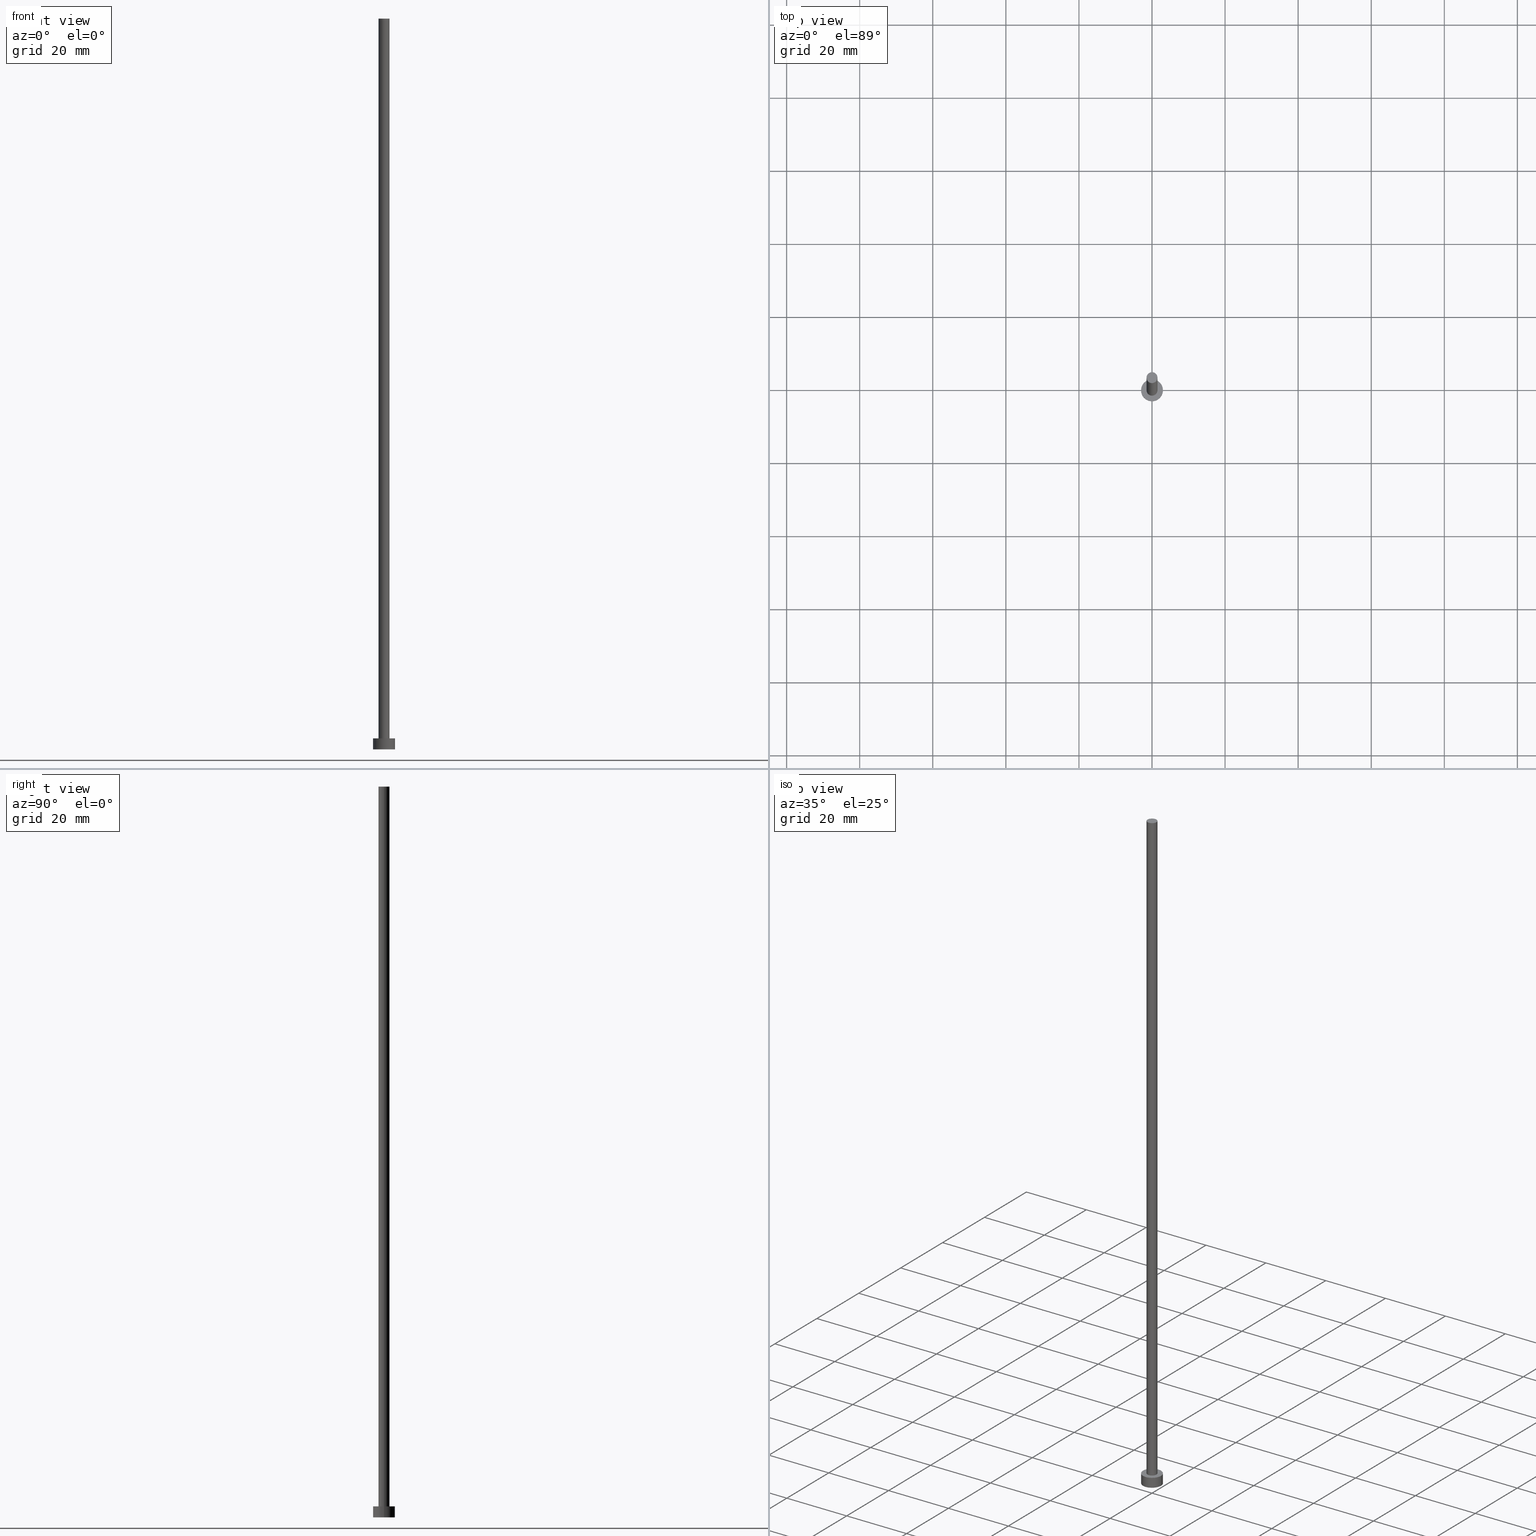
[diagram: canonical four-view strip — front | top / right | iso, engineering-drawing reading convention]
A machine part, canonical four-view strip (front | top / right | iso — engineering-drawing reading convention). The complete STEP part file that produces these views, byte-faithful:
ISO-10303-21;
HEADER;
FILE_DESCRIPTION (( 'STEP AP203' ),
    '1' );
FILE_NAME ('ea76.STEP',
    '2023-02-13T14:26:50',
    ( '' ),
    ( '' ),
    'SwSTEP 2.0',
    'SolidWorks 2019',
    '' );
FILE_SCHEMA (( 'CONFIG_CONTROL_DESIGN' ));
ENDSEC;

DATA;
#1 = AXIS2_PLACEMENT_3D ( 'NONE', #151, #56, #133 ) ;
#2 = DIRECTION ( 'NONE',  ( 0.000000000000000000, 0.000000000000000000, 1.000000000000000000 ) ) ;
#3 = APPROVAL_ROLE ( '' ) ;
#4 = PERSON_AND_ORGANIZATION ( #26, #108 ) ;
#5 = CARTESIAN_POINT ( 'NONE',  ( 0.000000000000000000, 0.000000000000000000, 3.000000000000000000 ) ) ;
#6 = FACE_OUTER_BOUND ( 'NONE', #117, .T. ) ;
#7 = CIRCLE ( 'NONE', #243, 1.500000000000000222 ) ;
#8 = ORIENTED_EDGE ( 'NONE', *, *, #55, .T. ) ;
#9 = ADVANCED_FACE ( 'NONE', ( #32 ), #182, .T. ) ;
#10 = COORDINATED_UNIVERSAL_TIME_OFFSET ( 1, 0, .AHEAD. ) ;
#11 = CALENDAR_DATE ( 2023, 13, 2 ) ;
#12 = APPROVAL_PERSON_ORGANIZATION ( #122, #149, #3 ) ;
#13 = DATE_AND_TIME ( #11, #142 ) ;
#14 = CIRCLE ( 'NONE', #183, 3.000000000000000444 ) ;
#15 = DIRECTION ( 'NONE',  ( 1.000000000000000000, 0.000000000000000000, -0.000000000000000000 ) ) ;
#16 = ORIENTED_EDGE ( 'NONE', *, *, #31, .F. ) ;
#17 = DIRECTION ( 'NONE',  ( -0.000000000000000000, -0.000000000000000000, -1.000000000000000000 ) ) ;
#18 = VERTEX_POINT ( 'NONE', #81 ) ;
#19 = DIRECTION ( 'NONE',  ( 1.000000000000000000, 0.000000000000000000, 0.000000000000000000 ) ) ;
#20 = ORIENTED_EDGE ( 'NONE', *, *, #132, .T. ) ;
#21 = EDGE_CURVE ( 'NONE', #190, #114, #74, .T. ) ;
#22 = EDGE_LOOP ( 'NONE', ( #146, #244 ) ) ;
#23 = DIRECTION ( 'NONE',  ( 0.000000000000000000, 0.000000000000000000, 1.000000000000000000 ) ) ;
#24 = VECTOR ( 'NONE', #204, 1000.000000000000000 ) ;
#25 = APPROVAL_STATUS ( 'not_yet_approved' ) ;
#26 = PERSON ( 'NEUR�EN�', 'NEUR�EN�', 'NEUR�EN�', ('NEUR�EN�'), ('NEUR�EN�'), ('NEUR�EN�') ) ;
#27 = ORIENTED_EDGE ( 'NONE', *, *, #196, .T. ) ;
#28 = CARTESIAN_POINT ( 'NONE',  ( -1.500000000000000222, 0.000000000000000000, 3.000000000000000000 ) ) ;
#29 = VECTOR ( 'NONE', #254, 1000.000000000000000 ) ;
#30 = DIRECTION ( 'NONE',  ( 0.000000000000000000, 0.000000000000000000, 1.000000000000000000 ) ) ;
#31 = EDGE_CURVE ( 'NONE', #114, #190, #14, .T. ) ;
#32 = FACE_OUTER_BOUND ( 'NONE', #252, .T. ) ;
#33 = APPROVAL ( #141, 'NEUR�EN�' ) ;
#34 = PERSON_AND_ORGANIZATION_ROLE ( 'classification_officer' ) ;
#35 = DATE_AND_TIME ( #87, #110 ) ;
#36 = CC_DESIGN_DATE_AND_TIME_ASSIGNMENT ( #13, #227, ( #253 ) ) ;
#37 = DIRECTION ( 'NONE',  ( -1.000000000000000000, 0.000000000000000000, 0.000000000000000000 ) ) ;
#38 = DIRECTION ( 'NONE',  ( 0.000000000000000000, 0.000000000000000000, 1.000000000000000000 ) ) ;
#39 = CARTESIAN_POINT ( 'NONE',  ( -1.500000000000000222, 0.000000000000000000, 200.0000000000000000 ) ) ;
#40 = CC_DESIGN_PERSON_AND_ORGANIZATION_ASSIGNMENT ( #67, #34, ( #253 ) ) ;
#41 = CLOSED_SHELL ( 'NONE', ( #52, #9, #237, #71, #47, #189, #185 ) ) ;
#42 = CARTESIAN_POINT ( 'NONE',  ( 1.500000000000000222, 1.836970198721030181E-16, 200.0000000000000000 ) ) ;
#43 = ORIENTED_EDGE ( 'NONE', *, *, #209, .T. ) ;
#44 =( GEOMETRIC_REPRESENTATION_CONTEXT ( 3 ) GLOBAL_UNCERTAINTY_ASSIGNED_CONTEXT ( ( #228 ) ) GLOBAL_UNIT_ASSIGNED_CONTEXT ( ( #162, #159, #158 ) ) REPRESENTATION_CONTEXT ( 'NONE', 'WORKASPACE' ) );
#45 = DIRECTION ( 'NONE',  ( 0.000000000000000000, 0.000000000000000000, 1.000000000000000000 ) ) ;
#46 = CARTESIAN_POINT ( 'NONE',  ( 0.000000000000000000, 0.000000000000000000, 3.000000000000000000 ) ) ;
#47 = ADVANCED_FACE ( 'NONE', ( #186 ), #89, .F. ) ;
#48 = ORIENTED_EDGE ( 'NONE', *, *, #118, .T. ) ;
#49 = DATE_AND_TIME ( #218, #113 ) ;
#50 = CARTESIAN_POINT ( 'NONE',  ( 3.000000000000000444, 3.673940397442060361E-16, 0.000000000000000000 ) ) ;
#51 = CARTESIAN_POINT ( 'NONE',  ( 0.000000000000000000, 0.000000000000000000, 3.000000000000000000 ) ) ;
#52 = ADVANCED_FACE ( 'NONE', ( #116 ), #211, .T. ) ;
#53 = APPROVAL_STATUS ( 'not_yet_approved' ) ;
#54 = CC_DESIGN_APPROVAL ( #33, ( #165 ) ) ;
#55 = EDGE_CURVE ( 'NONE', #18, #213, #172, .T. ) ;
#56 = DIRECTION ( 'NONE',  ( -0.000000000000000000, -0.000000000000000000, -1.000000000000000000 ) ) ;
#57 = CARTESIAN_POINT ( 'NONE',  ( -3.000000000000000444, 0.000000000000000000, 3.000000000000000000 ) ) ;
#58 = AXIS2_PLACEMENT_3D ( 'NONE', #176, #30, #124 ) ;
#59 = PLANE ( 'NONE',  #229 ) ;
#60 = EDGE_LOOP ( 'NONE', ( #104, #95 ) ) ;
#61 = CARTESIAN_POINT ( 'NONE',  ( 1.500000000000000222, 1.836970198721030181E-16, 200.0000000000000000 ) ) ;
#62 = DATE_TIME_ROLE ( 'creation_date' ) ;
#63 = EDGE_LOOP ( 'NONE', ( #66, #193 ) ) ;
#64 = CALENDAR_DATE ( 2023, 13, 2 ) ;
#65 = PERSON_AND_ORGANIZATION_ROLE ( 'design_owner' ) ;
#66 = ORIENTED_EDGE ( 'NONE', *, *, #147, .T. ) ;
#67 = PERSON_AND_ORGANIZATION ( #26, #108 ) ;
#68 = EDGE_CURVE ( 'NONE', #155, #200, #212, .T. ) ;
#69 = CYLINDRICAL_SURFACE ( 'NONE', #1, 1.500000000000000222 ) ;
#70 = ORIENTED_EDGE ( 'NONE', *, *, #138, .T. ) ;
#71 = ADVANCED_FACE ( 'NONE', ( #96, #73 ), #59, .T. ) ;
#72 = AXIS2_PLACEMENT_3D ( 'NONE', #216, #23, #197 ) ;
#73 = FACE_OUTER_BOUND ( 'NONE', #22, .T. ) ;
#74 = CIRCLE ( 'NONE', #139, 3.000000000000000444 ) ;
#75 = DIRECTION ( 'NONE',  ( 0.000000000000000000, 0.000000000000000000, 1.000000000000000000 ) ) ;
#76 = CARTESIAN_POINT ( 'NONE',  ( -3.000000000000000444, 0.000000000000000000, 3.000000000000000000 ) ) ;
#77 = DIRECTION ( 'NONE',  ( 1.000000000000000000, 0.000000000000000000, 0.000000000000000000 ) ) ;
#78 = COORDINATED_UNIVERSAL_TIME_OFFSET ( 1, 0, .AHEAD. ) ;
#79 = DIRECTION ( 'NONE',  ( -1.000000000000000000, 0.000000000000000000, 0.000000000000000000 ) ) ;
#80 = CC_DESIGN_PERSON_AND_ORGANIZATION_ASSIGNMENT ( #98, #178, ( #165 ) ) ;
#81 = CARTESIAN_POINT ( 'NONE',  ( -3.000000000000000444, 0.000000000000000000, 0.000000000000000000 ) ) ;
#82 = APPROVAL_PERSON_ORGANIZATION ( #148, #102, #225 ) ;
#83 = AXIS2_PLACEMENT_3D ( 'NONE', #136, #17, #37 ) ;
#84 = LOCAL_TIME ( 15, 26, 50.00000000000000000, #128 ) ;
#85 = PERSON_AND_ORGANIZATION_ROLE ( 'design_supplier' ) ;
#86 = DESIGN_CONTEXT ( 'detailed design', #111, 'design' ) ;
#87 = CALENDAR_DATE ( 2023, 13, 2 ) ;
#88 = AXIS2_PLACEMENT_3D ( 'NONE', #194, #157, #234 ) ;
#89 = PLANE ( 'NONE',  #164 ) ;
#90 = EDGE_CURVE ( 'NONE', #153, #155, #112, .T. ) ;
#91 = CARTESIAN_POINT ( 'NONE',  ( 0.000000000000000000, 0.000000000000000000, 200.0000000000000000 ) ) ;
#92 = ORIENTED_EDGE ( 'NONE', *, *, #68, .T. ) ;
#93 = CARTESIAN_POINT ( 'NONE',  ( 0.000000000000000000, 0.000000000000000000, 0.000000000000000000 ) ) ;
#94 = EDGE_LOOP ( 'NONE', ( #169, #241, #92, #43 ) ) ;
#95 = ORIENTED_EDGE ( 'NONE', *, *, #132, .F. ) ;
#96 = FACE_BOUND ( 'NONE', #60, .T. ) ;
#97 = VECTOR ( 'NONE', #255, 1000.000000000000000 ) ;
#98 = PERSON_AND_ORGANIZATION ( #26, #108 ) ;
#99 = DIRECTION ( 'NONE',  ( 1.000000000000000000, 0.000000000000000000, 0.000000000000000000 ) ) ;
#100 = PRODUCT ( 'ea76', 'ea76', '', ( #180 ) ) ;
#101 = CARTESIAN_POINT ( 'NONE',  ( 3.000000000000000444, 3.673940397442060361E-16, 3.000000000000000000 ) ) ;
#102 = APPROVAL ( #53, 'NEUR�EN�' ) ;
#103 = PERSON_AND_ORGANIZATION ( #26, #108 ) ;
#104 = ORIENTED_EDGE ( 'NONE', *, *, #209, .F. ) ;
#105 = CARTESIAN_POINT ( 'NONE',  ( 1.500000000000000222, 1.836970198721030181E-16, 3.000000000000000000 ) ) ;
#106 = AXIS2_PLACEMENT_3D ( 'NONE', #5, #121, #224 ) ;
#107 = ORIENTED_EDGE ( 'NONE', *, *, #68, .F. ) ;
#108 = ORGANIZATION ( 'NEUR�EN�', 'NEUR�EN�', '' ) ;
#109 = PERSON_AND_ORGANIZATION ( #26, #108 ) ;
#110 = LOCAL_TIME ( 15, 26, 50.00000000000000000, #188 ) ;
#111 = APPLICATION_CONTEXT ( 'configuration controlled 3d designs of mechanical parts and assemblies' ) ;
#112 = CIRCLE ( 'NONE', #166, 1.500000000000000222 ) ;
#113 = LOCAL_TIME ( 15, 26, 50.00000000000000000, #238 ) ;
#114 = VERTEX_POINT ( 'NONE', #191 ) ;
#115 = DIRECTION ( 'NONE',  ( 1.000000000000000000, 0.000000000000000000, 0.000000000000000000 ) ) ;
#116 = FACE_OUTER_BOUND ( 'NONE', #137, .T. ) ;
#117 = EDGE_LOOP ( 'NONE', ( #251, #175, #70, #8 ) ) ;
#118 = EDGE_CURVE ( 'NONE', #153, #217, #135, .T. ) ;
#119 = DIRECTION ( 'NONE',  ( 1.000000000000000000, 0.000000000000000000, -0.000000000000000000 ) ) ;
#120 = APPLICATION_PROTOCOL_DEFINITION ( 'international standard', 'config_control_design', 1994, #111 ) ;
#121 = DIRECTION ( 'NONE',  ( -0.000000000000000000, -0.000000000000000000, -1.000000000000000000 ) ) ;
#122 = PERSON_AND_ORGANIZATION ( #26, #108 ) ;
#123 = LOCAL_TIME ( 15, 26, 50.00000000000000000, #78 ) ;
#124 = DIRECTION ( 'NONE',  ( 1.000000000000000000, 0.000000000000000000, 0.000000000000000000 ) ) ;
#125 = ORIENTED_EDGE ( 'NONE', *, *, #55, .F. ) ;
#126 = MANIFOLD_SOLID_BREP ( 'P�idat vysunut�m3', #41 ) ;
#127 = DATE_AND_TIME ( #64, #84 ) ;
#128 = COORDINATED_UNIVERSAL_TIME_OFFSET ( 1, 0, .AHEAD. ) ;
#129 = CC_DESIGN_PERSON_AND_ORGANIZATION_ASSIGNMENT ( #4, #65, ( #100 ) ) ;
#130 = CIRCLE ( 'NONE', #58, 1.500000000000000222 ) ;
#131 = PERSON_AND_ORGANIZATION_ROLE ( 'creator' ) ;
#132 = EDGE_CURVE ( 'NONE', #217, #200, #203, .T. ) ;
#133 = DIRECTION ( 'NONE',  ( -1.000000000000000000, 0.000000000000000000, 0.000000000000000000 ) ) ;
#134 = DIRECTION ( 'NONE',  ( 1.000000000000000000, 0.000000000000000000, 0.000000000000000000 ) ) ;
#135 = LINE ( 'NONE', #42, #97 ) ;
#136 = CARTESIAN_POINT ( 'NONE',  ( 0.000000000000000000, 0.000000000000000000, 200.0000000000000000 ) ) ;
#137 = EDGE_LOOP ( 'NONE', ( #156, #48, #20, #107 ) ) ;
#138 = EDGE_CURVE ( 'NONE', #190, #18, #249, .T. ) ;
#139 = AXIS2_PLACEMENT_3D ( 'NONE', #202, #160, #99 ) ;
#140 = PLANE ( 'NONE',  #154 ) ;
#141 = APPROVAL_STATUS ( 'not_yet_approved' ) ;
#142 = LOCAL_TIME ( 15, 26, 50.00000000000000000, #10 ) ;
#143 = EDGE_LOOP ( 'NONE', ( #125, #210 ) ) ;
#144 = CC_DESIGN_SECURITY_CLASSIFICATION ( #253, ( #248 ) ) ;
#145 = DIRECTION ( 'NONE',  ( -0.000000000000000000, -0.000000000000000000, -1.000000000000000000 ) ) ;
#146 = ORIENTED_EDGE ( 'NONE', *, *, #21, .T. ) ;
#147 = EDGE_CURVE ( 'NONE', #155, #153, #7, .T. ) ;
#148 = PERSON_AND_ORGANIZATION ( #26, #108 ) ;
#149 = APPROVAL ( #25, 'NEUR�EN�' ) ;
#150 = SECURITY_CLASSIFICATION_LEVEL ( 'unclassified' ) ;
#151 = CARTESIAN_POINT ( 'NONE',  ( 0.000000000000000000, 0.000000000000000000, 200.0000000000000000 ) ) ;
#152 = DIRECTION ( 'NONE',  ( 0.000000000000000000, 0.000000000000000000, 1.000000000000000000 ) ) ;
#153 = VERTEX_POINT ( 'NONE', #61 ) ;
#154 = AXIS2_PLACEMENT_3D ( 'NONE', #214, #45, #119 ) ;
#155 = VERTEX_POINT ( 'NONE', #39 ) ;
#156 = ORIENTED_EDGE ( 'NONE', *, *, #90, .F. ) ;
#157 = DIRECTION ( 'NONE',  ( 0.000000000000000000, 0.000000000000000000, 1.000000000000000000 ) ) ;
#158 =( NAMED_UNIT ( * ) SI_UNIT ( $, .STERADIAN. ) SOLID_ANGLE_UNIT ( ) );
#159 =( NAMED_UNIT ( * ) PLANE_ANGLE_UNIT ( ) SI_UNIT ( $, .RADIAN. ) );
#160 = DIRECTION ( 'NONE',  ( 0.000000000000000000, 0.000000000000000000, 1.000000000000000000 ) ) ;
#161 = APPROVAL_PERSON_ORGANIZATION ( #103, #33, #219 ) ;
#162 =( LENGTH_UNIT ( ) NAMED_UNIT ( * ) SI_UNIT ( .MILLI., .METRE. ) );
#163 = APPROVAL_DATE_TIME ( #35, #102 ) ;
#164 = AXIS2_PLACEMENT_3D ( 'NONE', #174, #168, #15 ) ;
#165 = PRODUCT_DEFINITION ( 'NEZN�M�', '', #248, #86 ) ;
#166 = AXIS2_PLACEMENT_3D ( 'NONE', #250, #230, #134 ) ;
#167 = AXIS2_PLACEMENT_3D ( 'NONE', #93, #192, #19 ) ;
#168 = DIRECTION ( 'NONE',  ( 0.000000000000000000, 0.000000000000000000, 1.000000000000000000 ) ) ;
#169 = ORIENTED_EDGE ( 'NONE', *, *, #118, .F. ) ;
#170 = FACE_OUTER_BOUND ( 'NONE', #63, .T. ) ;
#171 = ORIENTED_EDGE ( 'NONE', *, *, #221, .T. ) ;
#172 = CIRCLE ( 'NONE', #167, 3.000000000000000444 ) ;
#173 = CARTESIAN_POINT ( 'NONE',  ( -1.500000000000000222, 0.000000000000000000, 200.0000000000000000 ) ) ;
#174 = CARTESIAN_POINT ( 'NONE',  ( 0.000000000000000000, 0.000000000000000000, 0.000000000000000000 ) ) ;
#175 = ORIENTED_EDGE ( 'NONE', *, *, #21, .F. ) ;
#176 = CARTESIAN_POINT ( 'NONE',  ( 0.000000000000000000, 0.000000000000000000, 3.000000000000000000 ) ) ;
#177 = CC_DESIGN_PERSON_AND_ORGANIZATION_ASSIGNMENT ( #187, #85, ( #248 ) ) ;
#178 = PERSON_AND_ORGANIZATION_ROLE ( 'creator' ) ;
#179 = AXIS2_PLACEMENT_3D ( 'NONE', #46, #145, #79 ) ;
#180 = MECHANICAL_CONTEXT ( 'NONE', #233, 'mechanical' ) ;
#181 = APPLICATION_PROTOCOL_DEFINITION ( 'international standard', 'config_control_design', 1994, #233 ) ;
#182 = CYLINDRICAL_SURFACE ( 'NONE', #106, 3.000000000000000444 ) ;
#183 = AXIS2_PLACEMENT_3D ( 'NONE', #51, #2, #77 ) ;
#184 = CARTESIAN_POINT ( 'NONE',  ( 0.000000000000000000, 0.000000000000000000, 0.000000000000000000 ) ) ;
#185 = ADVANCED_FACE ( 'NONE', ( #170 ), #140, .T. ) ;
#186 = FACE_OUTER_BOUND ( 'NONE', #143, .T. ) ;
#187 = PERSON_AND_ORGANIZATION ( #26, #108 ) ;
#188 = COORDINATED_UNIVERSAL_TIME_OFFSET ( 1, 0, .AHEAD. ) ;
#189 = ADVANCED_FACE ( 'NONE', ( #195 ), #69, .T. ) ;
#190 = VERTEX_POINT ( 'NONE', #76 ) ;
#191 = CARTESIAN_POINT ( 'NONE',  ( 3.000000000000000444, 3.673940397442060361E-16, 3.000000000000000000 ) ) ;
#192 = DIRECTION ( 'NONE',  ( 0.000000000000000000, 0.000000000000000000, 1.000000000000000000 ) ) ;
#193 = ORIENTED_EDGE ( 'NONE', *, *, #90, .T. ) ;
#194 = CARTESIAN_POINT ( 'NONE',  ( 0.000000000000000000, 0.000000000000000000, 3.000000000000000000 ) ) ;
#195 = FACE_OUTER_BOUND ( 'NONE', #94, .T. ) ;
#196 = EDGE_CURVE ( 'NONE', #114, #213, #201, .T. ) ;
#197 = DIRECTION ( 'NONE',  ( 1.000000000000000000, 0.000000000000000000, 0.000000000000000000 ) ) ;
#198 = DIRECTION ( 'NONE',  ( 1.000000000000000000, 0.000000000000000000, 0.000000000000000000 ) ) ;
#199 = AXIS2_PLACEMENT_3D ( 'NONE', #184, #75, #198 ) ;
#200 = VERTEX_POINT ( 'NONE', #28 ) ;
#201 = LINE ( 'NONE', #101, #24 ) ;
#202 = CARTESIAN_POINT ( 'NONE',  ( 0.000000000000000000, 0.000000000000000000, 3.000000000000000000 ) ) ;
#203 = CIRCLE ( 'NONE', #88, 1.500000000000000222 ) ;
#204 = DIRECTION ( 'NONE',  ( -0.000000000000000000, -0.000000000000000000, -1.000000000000000000 ) ) ;
#205 = DATE_AND_TIME ( #239, #123 ) ;
#206 = CARTESIAN_POINT ( 'NONE',  ( 0.000000000000000000, 0.000000000000000000, 3.000000000000000000 ) ) ;
#207 = ORIENTED_EDGE ( 'NONE', *, *, #138, .F. ) ;
#208 = DIRECTION ( 'NONE',  ( -0.000000000000000000, -0.000000000000000000, -1.000000000000000000 ) ) ;
#209 = EDGE_CURVE ( 'NONE', #200, #217, #130, .T. ) ;
#210 = ORIENTED_EDGE ( 'NONE', *, *, #221, .F. ) ;
#211 = CYLINDRICAL_SURFACE ( 'NONE', #83, 1.500000000000000222 ) ;
#212 = LINE ( 'NONE', #173, #29 ) ;
#213 = VERTEX_POINT ( 'NONE', #50 ) ;
#214 = CARTESIAN_POINT ( 'NONE',  ( 0.000000000000000000, 0.000000000000000000, 200.0000000000000000 ) ) ;
#215 = CC_DESIGN_PERSON_AND_ORGANIZATION_ASSIGNMENT ( #109, #131, ( #248 ) ) ;
#216 = CARTESIAN_POINT ( 'NONE',  ( 0.000000000000000000, 0.000000000000000000, 0.000000000000000000 ) ) ;
#217 = VERTEX_POINT ( 'NONE', #105 ) ;
#218 = CALENDAR_DATE ( 2023, 13, 2 ) ;
#219 = APPROVAL_ROLE ( '' ) ;
#220 = PRODUCT_DEFINITION_SHAPE ( 'NONE', 'NONE',  #165 ) ;
#221 = EDGE_CURVE ( 'NONE', #213, #18, #242, .T. ) ;
#222 = APPROVAL_DATE_TIME ( #127, #33 ) ;
#223 = CYLINDRICAL_SURFACE ( 'NONE', #179, 3.000000000000000444 ) ;
#224 = DIRECTION ( 'NONE',  ( -1.000000000000000000, 0.000000000000000000, 0.000000000000000000 ) ) ;
#225 = APPROVAL_ROLE ( '' ) ;
#226 = APPROVAL_DATE_TIME ( #205, #149 ) ;
#227 = DATE_TIME_ROLE ( 'classification_date' ) ;
#228 = UNCERTAINTY_MEASURE_WITH_UNIT (LENGTH_MEASURE( 1.000000000000000082E-05 ), #162, 'distance_accuracy_value', 'NONE');
#229 = AXIS2_PLACEMENT_3D ( 'NONE', #206, #152, #232 ) ;
#230 = DIRECTION ( 'NONE',  ( 0.000000000000000000, 0.000000000000000000, 1.000000000000000000 ) ) ;
#231 = CC_DESIGN_APPROVAL ( #149, ( #248 ) ) ;
#232 = DIRECTION ( 'NONE',  ( 1.000000000000000000, 0.000000000000000000, -0.000000000000000000 ) ) ;
#233 = APPLICATION_CONTEXT ( 'configuration controlled 3d designs of mechanical parts and assemblies' ) ;
#234 = DIRECTION ( 'NONE',  ( 1.000000000000000000, 0.000000000000000000, 0.000000000000000000 ) ) ;
#235 = VECTOR ( 'NONE', #208, 1000.000000000000000 ) ;
#236 = ADVANCED_BREP_SHAPE_REPRESENTATION ( 'ea76', ( #126, #72 ), #44 ) ;
#237 = ADVANCED_FACE ( 'NONE', ( #6 ), #223, .T. ) ;
#238 = COORDINATED_UNIVERSAL_TIME_OFFSET ( 1, 0, .AHEAD. ) ;
#239 = CALENDAR_DATE ( 2023, 13, 2 ) ;
#240 = CC_DESIGN_DATE_AND_TIME_ASSIGNMENT ( #49, #62, ( #165 ) ) ;
#241 = ORIENTED_EDGE ( 'NONE', *, *, #147, .F. ) ;
#242 = CIRCLE ( 'NONE', #199, 3.000000000000000444 ) ;
#243 = AXIS2_PLACEMENT_3D ( 'NONE', #91, #38, #115 ) ;
#244 = ORIENTED_EDGE ( 'NONE', *, *, #31, .T. ) ;
#245 = PRODUCT_RELATED_PRODUCT_CATEGORY ( 'detail', '', ( #100 ) ) ;
#246 = SHAPE_DEFINITION_REPRESENTATION ( #220, #236 ) ;
#247 = CC_DESIGN_APPROVAL ( #102, ( #253 ) ) ;
#248 = PRODUCT_DEFINITION_FORMATION_WITH_SPECIFIED_SOURCE ( 'LIBOVOLN�', '', #100, .NOT_KNOWN. ) ;
#249 = LINE ( 'NONE', #57, #235 ) ;
#250 = CARTESIAN_POINT ( 'NONE',  ( 0.000000000000000000, 0.000000000000000000, 200.0000000000000000 ) ) ;
#251 = ORIENTED_EDGE ( 'NONE', *, *, #196, .F. ) ;
#252 = EDGE_LOOP ( 'NONE', ( #16, #27, #171, #207 ) ) ;
#253 = SECURITY_CLASSIFICATION ( '', '', #150 ) ;
#254 = DIRECTION ( 'NONE',  ( -0.000000000000000000, -0.000000000000000000, -1.000000000000000000 ) ) ;
#255 = DIRECTION ( 'NONE',  ( -0.000000000000000000, -0.000000000000000000, -1.000000000000000000 ) ) ;
ENDSEC;
END-ISO-10303-21;
